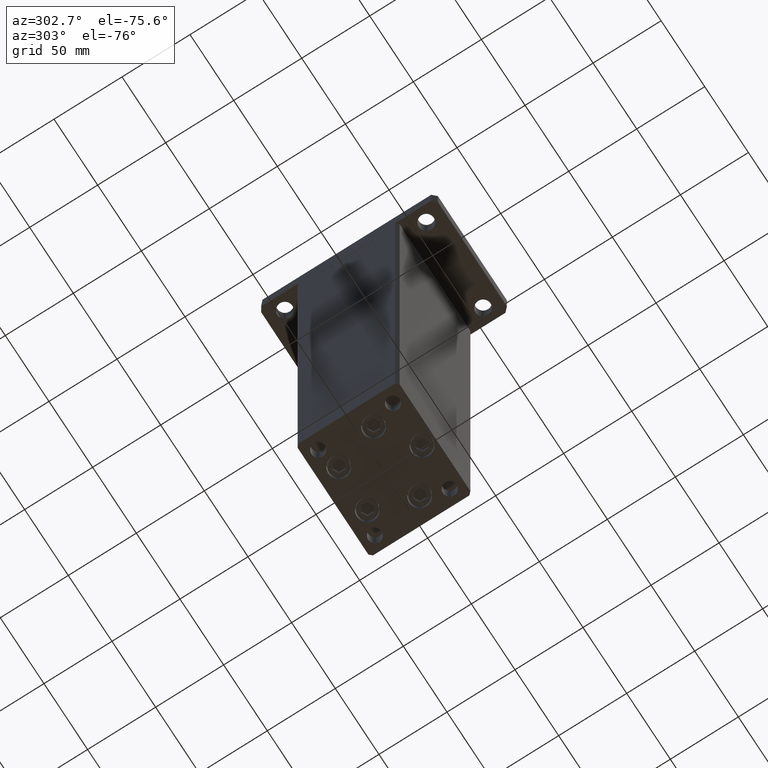
[diagram: clean part render]
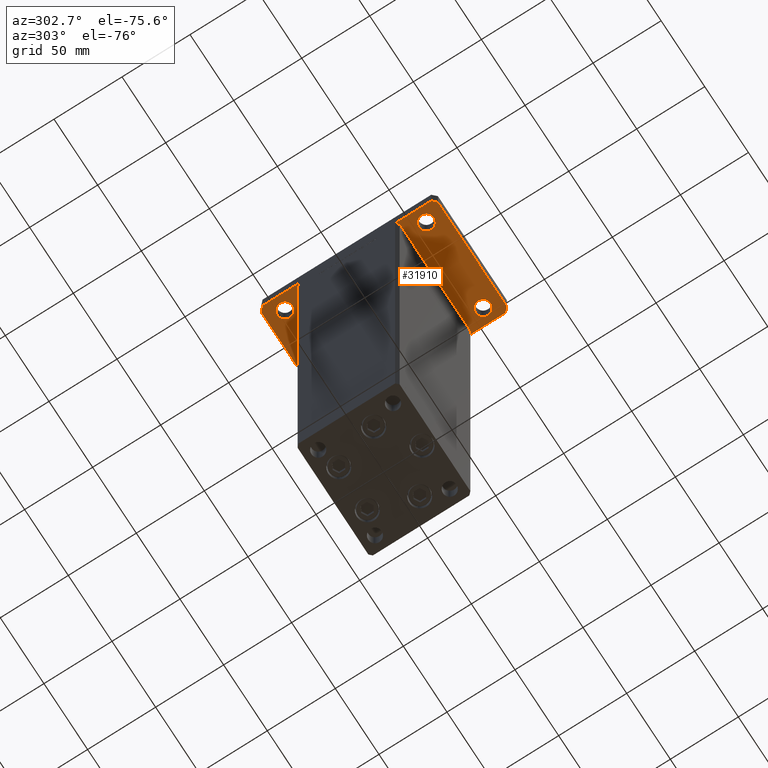
[diagram: same view with one face highlighted and labeled with its STEP entity id]
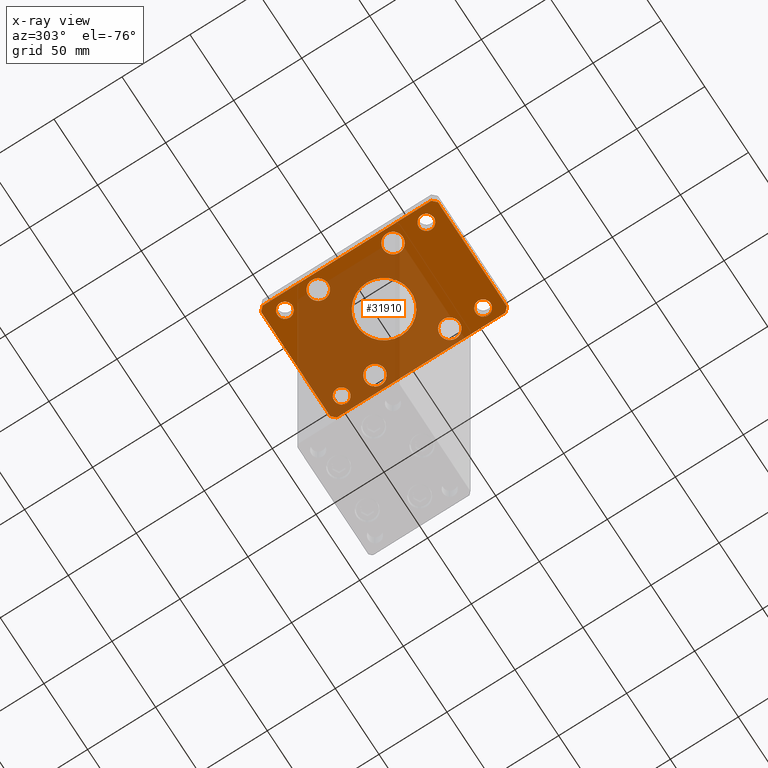
[diagram: x-ray of the same camera — body ghosted, the highlighted face saturated]
A machine part, auxiliary view. The second image highlights one B-rep face of the part: STEP entity #31910.
The next image is the same camera in x-ray: the body ghosted, the highlighted face saturated — about 59% of this face is hidden behind the body in this view.
In plain terms, the highlighted planar face has unit normal (0, 0, 1).
Its self-contained STEP definition (entity closure, byte-faithful):
#90 = VERTEX_POINT ( 'NONE', #50012 ) ;
#193 = CARTESIAN_POINT ( 'NONE',  ( -25.25000000000000711, 27.50000000000000000, 0.000000000000000000 ) ) ;
#325 = EDGE_CURVE ( 'NONE', #48007, #52764, #27621, .T. ) ;
#838 = ORIENTED_EDGE ( 'NONE', *, *, #4112, .T. ) ;
#1018 = ORIENTED_EDGE ( 'NONE', *, *, #38186, .T. ) ;
#1998 = CARTESIAN_POINT ( 'NONE',  ( -39.50000000000003553, 65.00000000000000000, 0.000000000000000000 ) ) ;
#2301 = VECTOR ( 'NONE', #49874, 1000.000000000000000 ) ;
#2352 = VERTEX_POINT ( 'NONE', #43472 ) ;
#2441 = CARTESIAN_POINT ( 'NONE',  ( 25.25000000000000000, 27.50000000000000000, 0.000000000000000000 ) ) ;
#2521 = LINE ( 'NONE', #3056, #35736 ) ;
#2565 = ORIENTED_EDGE ( 'NONE', *, *, #36074, .F. ) ;
#2775 = ORIENTED_EDGE ( 'NONE', *, *, #28574, .T. ) ;
#2823 = EDGE_LOOP ( 'NONE', ( #11407, #838 ) ) ;
#2860 = DIRECTION ( 'NONE',  ( 1.000000000000000000, 0.000000000000000000, 0.000000000000000000 ) ) ;
#3013 = EDGE_LOOP ( 'NONE', ( #49469, #4545 ) ) ;
#3056 = CARTESIAN_POINT ( 'NONE',  ( 39.50000000000001421, -64.99999999999988631, 0.000000000000000000 ) ) ;
#3057 = CIRCLE ( 'NONE', #33341, 5.499999999999998224 ) ;
#3111 = CIRCLE ( 'NONE', #33398, 5.499999999999994671 ) ;
#4112 = EDGE_CURVE ( 'NONE', #52103, #51924, #16448, .T. ) ;
#4545 = ORIENTED_EDGE ( 'NONE', *, *, #49818, .T. ) ;
#4575 = DIRECTION ( 'NONE',  ( 1.000000000000000000, 0.000000000000000000, 0.000000000000000000 ) ) ;
#4808 = AXIS2_PLACEMENT_3D ( 'NONE', #16751, #33270, #41663 ) ;
#5241 = FACE_BOUND ( 'NONE', #34005, .T. ) ;
#5439 = CARTESIAN_POINT ( 'NONE',  ( -39.50000000000000000, -65.00000000000000000, 0.000000000000000000 ) ) ;
#5749 = CIRCLE ( 'NONE', #19607, 7.249999999999999112 ) ;
#5936 = AXIS2_PLACEMENT_3D ( 'NONE', #22090, #18024, #6356 ) ;
#6037 = FACE_BOUND ( 'NONE', #53557, .T. ) ;
#6177 = AXIS2_PLACEMENT_3D ( 'NONE', #38422, #46565, #30030 ) ;
#6254 = CIRCLE ( 'NONE', #19273, 20.00000000000000000 ) ;
#6356 = DIRECTION ( 'NONE',  ( 1.000000000000000000, 0.000000000000000000, 0.000000000000000000 ) ) ;
#6609 = CIRCLE ( 'NONE', #20405, 5.499999999999991118 ) ;
#6666 = DIRECTION ( 'NONE',  ( -1.000000000000000000, 0.000000000000000000, 0.000000000000000000 ) ) ;
#6672 = CARTESIAN_POINT ( 'NONE',  ( 39.50000000000002842, 65.00000000000002842, 0.000000000000000000 ) ) ;
#7013 = DIRECTION ( 'NONE',  ( 0.000000000000000000, 0.000000000000000000, 1.000000000000000000 ) ) ;
#7051 = AXIS2_PLACEMENT_3D ( 'NONE', #26912, #51580, #38834 ) ;
#7278 = DIRECTION ( 'NONE',  ( 1.000000000000000000, 0.000000000000000000, 0.000000000000000000 ) ) ;
#9589 = FACE_BOUND ( 'NONE', #40553, .T. ) ;
#9718 = DIRECTION ( 'NONE',  ( 1.000000000000000000, 0.000000000000000000, 0.000000000000000000 ) ) ;
#10014 = CIRCLE ( 'NONE', #4808, 7.249999999999999112 ) ;
#10100 = VERTEX_POINT ( 'NONE', #31981 ) ;
#10225 = VERTEX_POINT ( 'NONE', #24653 ) ;
#10729 = DIRECTION ( 'NONE',  ( 0.000000000000000000, 0.000000000000000000, -1.000000000000000000 ) ) ;
#11118 = EDGE_CURVE ( 'NONE', #24776, #10100, #40735, .T. ) ;
#11311 = CARTESIAN_POINT ( 'NONE',  ( 42.50000000000000000, 62.00000000000000711, 0.000000000000000000 ) ) ;
#11343 = CARTESIAN_POINT ( 'NONE',  ( -20.00000000000000000, 0.000000000000000000, 0.000000000000000000 ) ) ;
#11407 = ORIENTED_EDGE ( 'NONE', *, *, #13312, .T. ) ;
#11840 = EDGE_CURVE ( 'NONE', #29365, #12234, #36407, .T. ) ;
#12234 = VERTEX_POINT ( 'NONE', #49618 ) ;
#12255 = DIRECTION ( 'NONE',  ( 0.000000000000000000, 0.000000000000000000, 1.000000000000000000 ) ) ;
#12659 = CIRCLE ( 'NONE', #16110, 20.00000000000000000 ) ;
#13117 = EDGE_CURVE ( 'NONE', #46500, #32739, #21166, .T. ) ;
#13244 = CARTESIAN_POINT ( 'NONE',  ( -42.49999999999999289, -62.00000000000001421, 0.000000000000000000 ) ) ;
#13312 = EDGE_CURVE ( 'NONE', #51924, #52103, #52063, .T. ) ;
#13372 = ORIENTED_EDGE ( 'NONE', *, *, #11840, .T. ) ;
#13610 = DIRECTION ( 'NONE',  ( 1.000000000000000000, 0.000000000000000000, 0.000000000000000000 ) ) ;
#14087 = CARTESIAN_POINT ( 'NONE',  ( 37.99999999999997868, -52.00000000000000711, 0.000000000000000000 ) ) ;
#14172 = DIRECTION ( 'NONE',  ( -0.7071067811865417996, 0.7071067811865532349, 0.000000000000000000 ) ) ;
#14539 = CARTESIAN_POINT ( 'NONE',  ( -39.50000000000000000, -65.00000000000000000, 0.000000000000000000 ) ) ;
#14986 = CARTESIAN_POINT ( 'NONE',  ( 42.50000000000000000, 62.00000000000000711, 0.000000000000000000 ) ) ;
#15067 = DIRECTION ( 'NONE',  ( -1.000000000000000000, -3.513364001978340512E-16, 0.000000000000000000 ) ) ;
#15332 = CARTESIAN_POINT ( 'NONE',  ( 0.000000000000000000, 0.000000000000000000, 0.000000000000000000 ) ) ;
#16019 = CIRCLE ( 'NONE', #35941, 7.249999999999999112 ) ;
#16110 = AXIS2_PLACEMENT_3D ( 'NONE', #15332, #10729, #6666 ) ;
#16274 = CARTESIAN_POINT ( 'NONE',  ( -42.49999999999999289, -62.00000000000001421, 0.000000000000000000 ) ) ;
#16400 = DIRECTION ( 'NONE',  ( 1.000000000000000000, 0.000000000000000000, 0.000000000000000000 ) ) ;
#16448 = CIRCLE ( 'NONE', #44154, 5.499999999999994671 ) ;
#16751 = CARTESIAN_POINT ( 'NONE',  ( 32.50000000000000000, 27.50000000000000000, 0.000000000000000000 ) ) ;
#17019 = VERTEX_POINT ( 'NONE', #11311 ) ;
#17322 = CARTESIAN_POINT ( 'NONE',  ( 32.50000000000000000, -27.50000000000000000, 0.000000000000000000 ) ) ;
#17600 = CIRCLE ( 'NONE', #29691, 7.249999999999999112 ) ;
#17708 = ORIENTED_EDGE ( 'NONE', *, *, #43444, .T. ) ;
#18024 = DIRECTION ( 'NONE',  ( 0.000000000000000000, 0.000000000000000000, 1.000000000000000000 ) ) ;
#18505 = FACE_BOUND ( 'NONE', #41997, .T. ) ;
#18637 = EDGE_CURVE ( 'NONE', #2352, #17019, #20752, .T. ) ;
#19266 = ORIENTED_EDGE ( 'NONE', *, *, #34480, .T. ) ;
#19273 = AXIS2_PLACEMENT_3D ( 'NONE', #24310, #47925, #44888 ) ;
#19537 = ORIENTED_EDGE ( 'NONE', *, *, #23063, .T. ) ;
#19607 = AXIS2_PLACEMENT_3D ( 'NONE', #46470, #26403, #38321 ) ;
#19662 = LINE ( 'NONE', #6672, #35040 ) ;
#19730 = CARTESIAN_POINT ( 'NONE',  ( -32.49999999999997868, -52.00000000000000711, 0.000000000000000000 ) ) ;
#20189 = CARTESIAN_POINT ( 'NONE',  ( -32.50000000000000000, -27.50000000000000000, 0.000000000000000000 ) ) ;
#20405 = AXIS2_PLACEMENT_3D ( 'NONE', #48078, #28988, #27204 ) ;
#20670 = CARTESIAN_POINT ( 'NONE',  ( -32.50000000000000000, 52.00000000000000000, 0.000000000000000000 ) ) ;
#20752 = LINE ( 'NONE', #45951, #31424 ) ;
#21118 = CARTESIAN_POINT ( 'NONE',  ( -32.50000000000000000, -27.50000000000000000, 0.000000000000000000 ) ) ;
#21166 = LINE ( 'NONE', #5439, #26938 ) ;
#21434 = CARTESIAN_POINT ( 'NONE',  ( 32.49999999999997868, -52.00000000000000711, 0.000000000000000000 ) ) ;
#21774 = CIRCLE ( 'NONE', #6177, 7.249999999999999112 ) ;
#22059 = CIRCLE ( 'NONE', #44567, 7.249999999999999112 ) ;
#22090 = CARTESIAN_POINT ( 'NONE',  ( -32.50000000000000711, 27.50000000000000000, 0.000000000000000000 ) ) ;
#22317 = FACE_BOUND ( 'NONE', #2823, .T. ) ;
#22847 = LINE ( 'NONE', #14986, #33010 ) ;
#23063 = EDGE_CURVE ( 'NONE', #42091, #31504, #22059, .T. ) ;
#23186 = ORIENTED_EDGE ( 'NONE', *, *, #18637, .F. ) ;
#23469 = AXIS2_PLACEMENT_3D ( 'NONE', #41253, #12255, #28014 ) ;
#23477 = ORIENTED_EDGE ( 'NONE', *, *, #36767, .F. ) ;
#23594 = EDGE_LOOP ( 'NONE', ( #17708, #19537 ) ) ;
#23859 = CARTESIAN_POINT ( 'NONE',  ( 39.75000000000000000, 27.50000000000000000, 0.000000000000000000 ) ) ;
#24081 = VERTEX_POINT ( 'NONE', #47550 ) ;
#24265 = CARTESIAN_POINT ( 'NONE',  ( 27.00000000000001421, 51.99999999999999289, 0.000000000000000000 ) ) ;
#24310 = CARTESIAN_POINT ( 'NONE',  ( 0.000000000000000000, 0.000000000000000000, 0.000000000000000000 ) ) ;
#24403 = AXIS2_PLACEMENT_3D ( 'NONE', #21434, #46094, #37957 ) ;
#24653 = CARTESIAN_POINT ( 'NONE',  ( 25.25000000000000000, -27.50000000000000000, 0.000000000000000000 ) ) ;
#24776 = VERTEX_POINT ( 'NONE', #48696 ) ;
#25131 = LINE ( 'NONE', #49795, #38492 ) ;
#25660 = CARTESIAN_POINT ( 'NONE',  ( -32.50000000000000711, 27.50000000000000000, 0.000000000000000000 ) ) ;
#26138 = LINE ( 'NONE', #1998, #29964 ) ;
#26239 = DIRECTION ( 'NONE',  ( 0.000000000000000000, 0.000000000000000000, 1.000000000000000000 ) ) ;
#26403 = DIRECTION ( 'NONE',  ( 0.000000000000000000, 0.000000000000000000, 1.000000000000000000 ) ) ;
#26725 = ORIENTED_EDGE ( 'NONE', *, *, #47351, .F. ) ;
#26907 = AXIS2_PLACEMENT_3D ( 'NONE', #19730, #7013, #7278 ) ;
#26912 = CARTESIAN_POINT ( 'NONE',  ( 0.000000000000000000, 0.000000000000000000, 0.000000000000000000 ) ) ;
#26938 = VECTOR ( 'NONE', #33622, 1000.000000000000000 ) ;
#26995 = CIRCLE ( 'NONE', #24403, 5.499999999999998224 ) ;
#27076 = EDGE_CURVE ( 'NONE', #90, #41876, #25131, .T. ) ;
#27204 = DIRECTION ( 'NONE',  ( 1.000000000000000000, 0.000000000000000000, 0.000000000000000000 ) ) ;
#27446 = ORIENTED_EDGE ( 'NONE', *, *, #34107, .F. ) ;
#27621 = CIRCLE ( 'NONE', #5936, 7.249999999999999112 ) ;
#27834 = ORIENTED_EDGE ( 'NONE', *, *, #33923, .T. ) ;
#28014 = DIRECTION ( 'NONE',  ( 1.000000000000000000, 0.000000000000000000, 0.000000000000000000 ) ) ;
#28048 = VERTEX_POINT ( 'NONE', #39277 ) ;
#28464 = EDGE_CURVE ( 'NONE', #52764, #48007, #16019, .T. ) ;
#28574 = EDGE_CURVE ( 'NONE', #49534, #46492, #3057, .T. ) ;
#28599 = EDGE_CURVE ( 'NONE', #24081, #28048, #19662, .T. ) ;
#28667 = AXIS2_PLACEMENT_3D ( 'NONE', #50906, #26239, #9718 ) ;
#28810 = DIRECTION ( 'NONE',  ( 1.000000000000000000, 0.000000000000000000, 0.000000000000000000 ) ) ;
#28988 = DIRECTION ( 'NONE',  ( 0.000000000000000000, 0.000000000000000000, 1.000000000000000000 ) ) ;
#29365 = VERTEX_POINT ( 'NONE', #24265 ) ;
#29691 = AXIS2_PLACEMENT_3D ( 'NONE', #17322, #38172, #4575 ) ;
#29765 = EDGE_LOOP ( 'NONE', ( #45351, #26725, #33700, #42761, #50063, #27446, #23186, #23477 ) ) ;
#29874 = ORIENTED_EDGE ( 'NONE', *, *, #11118, .T. ) ;
#29964 = VECTOR ( 'NONE', #39129, 1000.000000000000000 ) ;
#30030 = DIRECTION ( 'NONE',  ( 1.000000000000000000, 0.000000000000000000, 0.000000000000000000 ) ) ;
#30429 = PLANE ( 'NONE',  #7051 ) ;
#31234 = VERTEX_POINT ( 'NONE', #51167 ) ;
#31424 = VECTOR ( 'NONE', #53288, 1000.000000000000000 ) ;
#31504 = VERTEX_POINT ( 'NONE', #38633 ) ;
#31910 = ADVANCED_FACE ( 'NONE', ( #47785, #35300, #5241, #18505, #22317, #51848, #9589, #43160, #6037, #42630 ), #30429, .F. ) ;
#31981 = CARTESIAN_POINT ( 'NONE',  ( -37.99999999999997868, -52.00000000000000711, 0.000000000000000000 ) ) ;
#32478 = AXIS2_PLACEMENT_3D ( 'NONE', #20189, #44328, #16400 ) ;
#32536 = LINE ( 'NONE', #16274, #2301 ) ;
#32739 = VERTEX_POINT ( 'NONE', #45631 ) ;
#33010 = VECTOR ( 'NONE', #14172, 1000.000000000000000 ) ;
#33270 = DIRECTION ( 'NONE',  ( 0.000000000000000000, 0.000000000000000000, 1.000000000000000000 ) ) ;
#33341 = AXIS2_PLACEMENT_3D ( 'NONE', #40258, #47326, #2860 ) ;
#33398 = AXIS2_PLACEMENT_3D ( 'NONE', #48271, #35786, #40122 ) ;
#33622 = DIRECTION ( 'NONE',  ( 1.000000000000000000, 1.405345600791337191E-15, 0.000000000000000000 ) ) ;
#33700 = ORIENTED_EDGE ( 'NONE', *, *, #27076, .F. ) ;
#33923 = EDGE_CURVE ( 'NONE', #10225, #47436, #21774, .T. ) ;
#34005 = EDGE_LOOP ( 'NONE', ( #50141, #29874 ) ) ;
#34053 = DIRECTION ( 'NONE',  ( 1.000000000000000000, 0.000000000000000000, 0.000000000000000000 ) ) ;
#34107 = EDGE_CURVE ( 'NONE', #17019, #24081, #22847, .T. ) ;
#34480 = EDGE_CURVE ( 'NONE', #46492, #49534, #26995, .T. ) ;
#34612 = VERTEX_POINT ( 'NONE', #2441 ) ;
#34704 = ORIENTED_EDGE ( 'NONE', *, *, #46088, .T. ) ;
#34751 = VERTEX_POINT ( 'NONE', #23859 ) ;
#35040 = VECTOR ( 'NONE', #15067, 1000.000000000000000 ) ;
#35300 = FACE_OUTER_BOUND ( 'NONE', #29765, .T. ) ;
#35736 = VECTOR ( 'NONE', #39381, 1000.000000000000114 ) ;
#35738 = ORIENTED_EDGE ( 'NONE', *, *, #51248, .F. ) ;
#35786 = DIRECTION ( 'NONE',  ( 0.000000000000000000, 0.000000000000000000, 1.000000000000000000 ) ) ;
#35941 = AXIS2_PLACEMENT_3D ( 'NONE', #25660, #47056, #34053 ) ;
#36074 = EDGE_CURVE ( 'NONE', #31234, #52046, #6254, .T. ) ;
#36407 = CIRCLE ( 'NONE', #23469, 5.499999999999991118 ) ;
#36767 = EDGE_CURVE ( 'NONE', #32739, #2352, #2521, .T. ) ;
#37192 = DIRECTION ( 'NONE',  ( 0.000000000000000000, 0.000000000000000000, 1.000000000000000000 ) ) ;
#37417 = ORIENTED_EDGE ( 'NONE', *, *, #28464, .T. ) ;
#37957 = DIRECTION ( 'NONE',  ( 1.000000000000000000, 0.000000000000000000, 0.000000000000000000 ) ) ;
#38172 = DIRECTION ( 'NONE',  ( 0.000000000000000000, 0.000000000000000000, 1.000000000000000000 ) ) ;
#38186 = EDGE_CURVE ( 'NONE', #47436, #10225, #17600, .T. ) ;
#38321 = DIRECTION ( 'NONE',  ( 1.000000000000000000, 0.000000000000000000, 0.000000000000000000 ) ) ;
#38422 = CARTESIAN_POINT ( 'NONE',  ( 32.50000000000000000, -27.50000000000000000, 0.000000000000000000 ) ) ;
#38492 = VECTOR ( 'NONE', #41121, 1000.000000000000000 ) ;
#38633 = CARTESIAN_POINT ( 'NONE',  ( -39.75000000000000000, -27.50000000000000000, 0.000000000000000000 ) ) ;
#38834 = DIRECTION ( 'NONE',  ( 1.000000000000000000, 0.000000000000000000, -0.000000000000000000 ) ) ;
#39129 = DIRECTION ( 'NONE',  ( -0.7071067811865466846, -0.7071067811865483499, 0.000000000000000000 ) ) ;
#39277 = CARTESIAN_POINT ( 'NONE',  ( -39.50000000000003553, 65.00000000000000000, 0.000000000000000000 ) ) ;
#39381 = DIRECTION ( 'NONE',  ( 0.7071067811865459074, 0.7071067811865491270, 0.000000000000000000 ) ) ;
#39853 = EDGE_LOOP ( 'NONE', ( #19266, #2775 ) ) ;
#40122 = DIRECTION ( 'NONE',  ( 1.000000000000000000, 0.000000000000000000, 0.000000000000000000 ) ) ;
#40258 = CARTESIAN_POINT ( 'NONE',  ( 32.49999999999997868, -52.00000000000000711, 0.000000000000000000 ) ) ;
#40553 = EDGE_LOOP ( 'NONE', ( #27834, #1018 ) ) ;
#40735 = CIRCLE ( 'NONE', #26907, 5.499999999999994671 ) ;
#41121 = DIRECTION ( 'NONE',  ( 2.238352872228137677E-16, -1.000000000000000000, 0.000000000000000000 ) ) ;
#41253 = CARTESIAN_POINT ( 'NONE',  ( 32.50000000000000000, 51.99999999999999289, 0.000000000000000000 ) ) ;
#41376 = CARTESIAN_POINT ( 'NONE',  ( -27.00000000000000711, 52.00000000000000000, 0.000000000000000000 ) ) ;
#41663 = DIRECTION ( 'NONE',  ( 1.000000000000000000, 0.000000000000000000, 0.000000000000000000 ) ) ;
#41876 = VERTEX_POINT ( 'NONE', #13244 ) ;
#41997 = EDGE_LOOP ( 'NONE', ( #13372, #34704 ) ) ;
#42091 = VERTEX_POINT ( 'NONE', #45694 ) ;
#42630 = FACE_BOUND ( 'NONE', #39853, .T. ) ;
#42761 = ORIENTED_EDGE ( 'NONE', *, *, #46778, .F. ) ;
#43160 = FACE_BOUND ( 'NONE', #3013, .T. ) ;
#43444 = EDGE_CURVE ( 'NONE', #31504, #42091, #47189, .T. ) ;
#43472 = CARTESIAN_POINT ( 'NONE',  ( 42.50000000000000000, -61.99999999999988631, 0.000000000000000000 ) ) ;
#44154 = AXIS2_PLACEMENT_3D ( 'NONE', #20670, #37192, #28810 ) ;
#44328 = DIRECTION ( 'NONE',  ( 0.000000000000000000, 0.000000000000000000, 1.000000000000000000 ) ) ;
#44567 = AXIS2_PLACEMENT_3D ( 'NONE', #21118, #46044, #13610 ) ;
#44888 = DIRECTION ( 'NONE',  ( -1.000000000000000000, 0.000000000000000000, 0.000000000000000000 ) ) ;
#45351 = ORIENTED_EDGE ( 'NONE', *, *, #13117, .F. ) ;
#45631 = CARTESIAN_POINT ( 'NONE',  ( 39.50000000000001421, -64.99999999999988631, 0.000000000000000000 ) ) ;
#45694 = CARTESIAN_POINT ( 'NONE',  ( -25.25000000000000000, -27.50000000000000000, 0.000000000000000000 ) ) ;
#45951 = CARTESIAN_POINT ( 'NONE',  ( 42.50000000000000000, -61.99999999999988631, 0.000000000000000000 ) ) ;
#46044 = DIRECTION ( 'NONE',  ( 0.000000000000000000, 0.000000000000000000, 1.000000000000000000 ) ) ;
#46088 = EDGE_CURVE ( 'NONE', #12234, #29365, #6609, .T. ) ;
#46094 = DIRECTION ( 'NONE',  ( 0.000000000000000000, 0.000000000000000000, 1.000000000000000000 ) ) ;
#46470 = CARTESIAN_POINT ( 'NONE',  ( 32.50000000000000000, 27.50000000000000000, 0.000000000000000000 ) ) ;
#46492 = VERTEX_POINT ( 'NONE', #51670 ) ;
#46500 = VERTEX_POINT ( 'NONE', #14539 ) ;
#46565 = DIRECTION ( 'NONE',  ( 0.000000000000000000, 0.000000000000000000, 1.000000000000000000 ) ) ;
#46778 = EDGE_CURVE ( 'NONE', #28048, #90, #26138, .T. ) ;
#47056 = DIRECTION ( 'NONE',  ( 0.000000000000000000, 0.000000000000000000, 1.000000000000000000 ) ) ;
#47189 = CIRCLE ( 'NONE', #32478, 7.249999999999999112 ) ;
#47326 = DIRECTION ( 'NONE',  ( 0.000000000000000000, 0.000000000000000000, 1.000000000000000000 ) ) ;
#47351 = EDGE_CURVE ( 'NONE', #41876, #46500, #32536, .T. ) ;
#47436 = VERTEX_POINT ( 'NONE', #53135 ) ;
#47550 = CARTESIAN_POINT ( 'NONE',  ( 39.50000000000002842, 65.00000000000002842, 0.000000000000000000 ) ) ;
#47785 = FACE_BOUND ( 'NONE', #49831, .T. ) ;
#47925 = DIRECTION ( 'NONE',  ( 0.000000000000000000, 0.000000000000000000, -1.000000000000000000 ) ) ;
#48007 = VERTEX_POINT ( 'NONE', #50123 ) ;
#48078 = CARTESIAN_POINT ( 'NONE',  ( 32.50000000000000000, 51.99999999999999289, 0.000000000000000000 ) ) ;
#48271 = CARTESIAN_POINT ( 'NONE',  ( -32.49999999999997868, -52.00000000000000711, 0.000000000000000000 ) ) ;
#48381 = EDGE_CURVE ( 'NONE', #34612, #34751, #5749, .T. ) ;
#48696 = CARTESIAN_POINT ( 'NONE',  ( -26.99999999999998579, -52.00000000000000711, 0.000000000000000000 ) ) ;
#49469 = ORIENTED_EDGE ( 'NONE', *, *, #48381, .T. ) ;
#49534 = VERTEX_POINT ( 'NONE', #14087 ) ;
#49618 = CARTESIAN_POINT ( 'NONE',  ( 37.99999999999999289, 51.99999999999999289, 0.000000000000000000 ) ) ;
#49795 = CARTESIAN_POINT ( 'NONE',  ( -42.50000000000002132, 62.00000000000000711, 0.000000000000000000 ) ) ;
#49818 = EDGE_CURVE ( 'NONE', #34751, #34612, #10014, .T. ) ;
#49831 = EDGE_LOOP ( 'NONE', ( #35738, #2565 ) ) ;
#49855 = CARTESIAN_POINT ( 'NONE',  ( -38.00000000000000000, 52.00000000000000000, 0.000000000000000000 ) ) ;
#49874 = DIRECTION ( 'NONE',  ( 0.7071067811865483499, -0.7071067811865466846, 0.000000000000000000 ) ) ;
#50012 = CARTESIAN_POINT ( 'NONE',  ( -42.50000000000002132, 62.00000000000000711, 0.000000000000000000 ) ) ;
#50063 = ORIENTED_EDGE ( 'NONE', *, *, #28599, .F. ) ;
#50123 = CARTESIAN_POINT ( 'NONE',  ( -39.75000000000000711, 27.50000000000000000, 0.000000000000000000 ) ) ;
#50141 = ORIENTED_EDGE ( 'NONE', *, *, #50833, .T. ) ;
#50833 = EDGE_CURVE ( 'NONE', #10100, #24776, #3111, .T. ) ;
#50906 = CARTESIAN_POINT ( 'NONE',  ( -32.50000000000000000, 52.00000000000000000, 0.000000000000000000 ) ) ;
#51167 = CARTESIAN_POINT ( 'NONE',  ( 20.00000000000000000, 2.449293598294706513E-15, 0.000000000000000000 ) ) ;
#51248 = EDGE_CURVE ( 'NONE', #52046, #31234, #12659, .T. ) ;
#51580 = DIRECTION ( 'NONE',  ( 0.000000000000000000, 0.000000000000000000, 1.000000000000000000 ) ) ;
#51670 = CARTESIAN_POINT ( 'NONE',  ( 26.99999999999998579, -52.00000000000000711, 0.000000000000000000 ) ) ;
#51788 = ORIENTED_EDGE ( 'NONE', *, *, #325, .T. ) ;
#51848 = FACE_BOUND ( 'NONE', #23594, .T. ) ;
#51924 = VERTEX_POINT ( 'NONE', #49855 ) ;
#52046 = VERTEX_POINT ( 'NONE', #11343 ) ;
#52063 = CIRCLE ( 'NONE', #28667, 5.499999999999994671 ) ;
#52103 = VERTEX_POINT ( 'NONE', #41376 ) ;
#52764 = VERTEX_POINT ( 'NONE', #193 ) ;
#53135 = CARTESIAN_POINT ( 'NONE',  ( 39.75000000000000000, -27.50000000000000000, 0.000000000000000000 ) ) ;
#53288 = DIRECTION ( 'NONE',  ( 0.000000000000000000, 1.000000000000000000, 0.000000000000000000 ) ) ;
#53557 = EDGE_LOOP ( 'NONE', ( #51788, #37417 ) ) ;